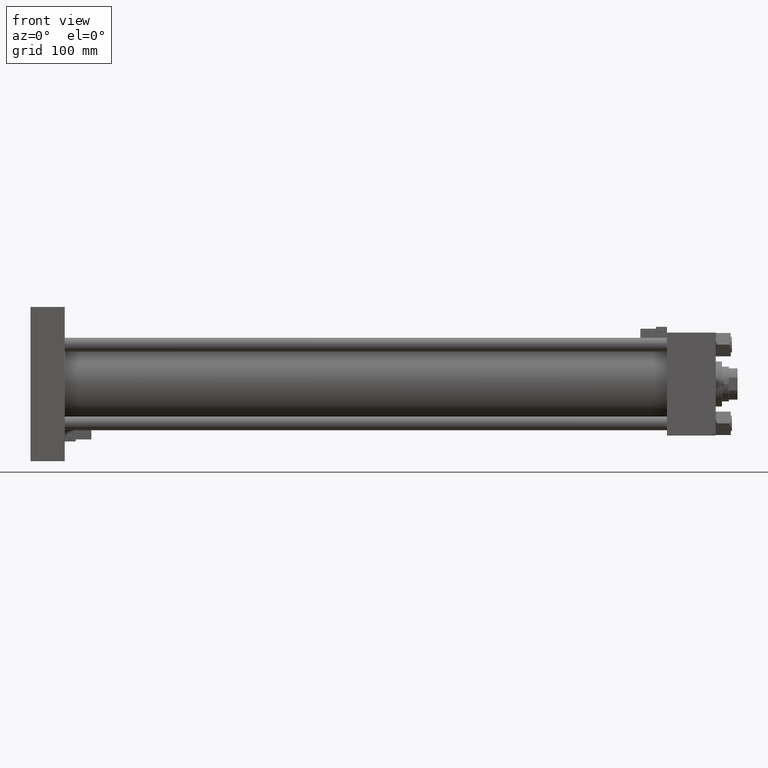
[diagram: clean part render]
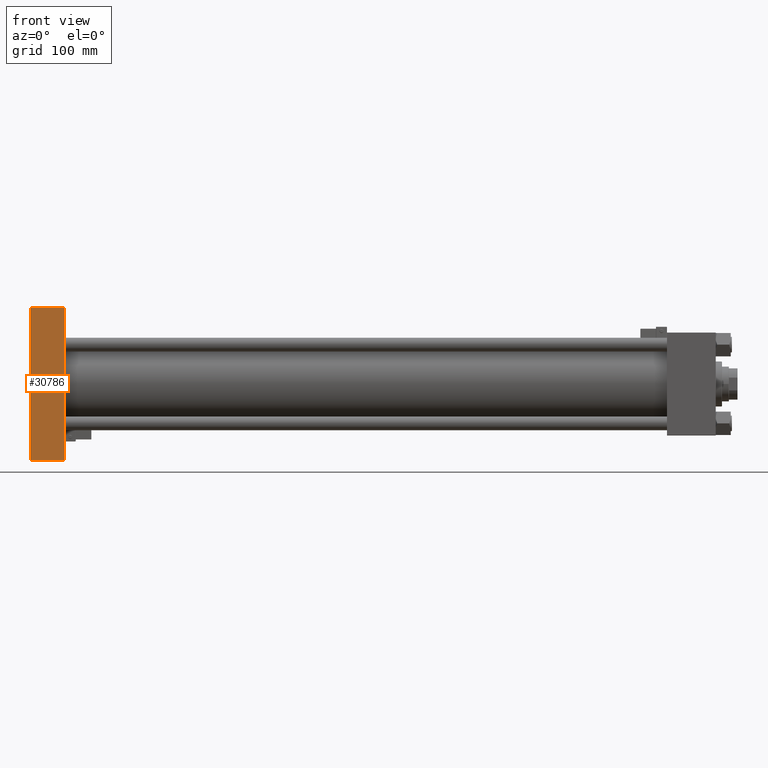
[diagram: same view with one face highlighted and labeled with its STEP entity id]
A machine part, front view. The second image highlights one B-rep face of the part: STEP entity #30786.
In plain terms, the highlighted planar face has unit normal (0, 1, 0).
Its self-contained STEP definition (entity closure, byte-faithful):
#94 = ORIENTED_EDGE ( 'NONE', *, *, #40303, .T. ) ;
#649 = AXIS2_PLACEMENT_3D ( 'NONE', #40878, #44623, #7823 ) ;
#2226 = ORIENTED_EDGE ( 'NONE', *, *, #43923, .F. ) ;
#4579 = VERTEX_POINT ( 'NONE', #46416 ) ;
#6760 = CARTESIAN_POINT ( 'NONE',  ( 55.00000000000000000, -82.49999999999998579, 122.9999999999999716 ) ) ;
#7823 = DIRECTION ( 'NONE',  ( 0.000000000000000000, -0.000000000000000000, 1.000000000000000000 ) ) ;
#8660 = VECTOR ( 'NONE', #25957, 1000.000000000000000 ) ;
#9691 = CARTESIAN_POINT ( 'NONE',  ( 55.00000000000000000, -82.49999999999998579, 123.5000000000000000 ) ) ;
#13676 = LINE ( 'NONE', #9691, #8660 ) ;
#13839 = DIRECTION ( 'NONE',  ( 1.000000000000000000, 0.000000000000000000, 0.000000000000000000 ) ) ;
#16859 = LINE ( 'NONE', #20872, #24682 ) ;
#20872 = CARTESIAN_POINT ( 'NONE',  ( 55.00000000000000000, -82.49999999999998579, 122.9999999999999716 ) ) ;
#23565 = CARTESIAN_POINT ( 'NONE',  ( 0.000000000000000000, -82.49999999999998579, -122.9999999999999432 ) ) ;
#24289 = LINE ( 'NONE', #24546, #31205 ) ;
#24298 = CARTESIAN_POINT ( 'NONE',  ( 0.000000000000000000, -82.49999999999998579, 122.9999999999999716 ) ) ;
#24546 = CARTESIAN_POINT ( 'NONE',  ( 0.000000000000000000, -82.49999999999998579, 123.5000000000000000 ) ) ;
#24682 = VECTOR ( 'NONE', #44638, 1000.000000000000000 ) ;
#25633 = EDGE_LOOP ( 'NONE', ( #43769, #27075, #2226, #94 ) ) ;
#25957 = DIRECTION ( 'NONE',  ( 0.000000000000000000, 0.000000000000000000, -1.000000000000000000 ) ) ;
#27075 = ORIENTED_EDGE ( 'NONE', *, *, #29947, .T. ) ;
#28817 = DIRECTION ( 'NONE',  ( 0.000000000000000000, 0.000000000000000000, -1.000000000000000000 ) ) ;
#29947 = EDGE_CURVE ( 'NONE', #42748, #4579, #49319, .T. ) ;
#30786 = ADVANCED_FACE ( 'NONE', ( #44091 ), #48615, .F. ) ;
#31205 = VECTOR ( 'NONE', #28817, 1000.000000000000000 ) ;
#31951 = EDGE_CURVE ( 'NONE', #40553, #42748, #24289, .T. ) ;
#40303 = EDGE_CURVE ( 'NONE', #45453, #40553, #16859, .T. ) ;
#40553 = VERTEX_POINT ( 'NONE', #24298 ) ;
#40878 = CARTESIAN_POINT ( 'NONE',  ( 55.00000000000000000, -82.49999999999998579, 123.5000000000000000 ) ) ;
#42748 = VERTEX_POINT ( 'NONE', #23565 ) ;
#43769 = ORIENTED_EDGE ( 'NONE', *, *, #31951, .T. ) ;
#43923 = EDGE_CURVE ( 'NONE', #45453, #4579, #13676, .T. ) ;
#44091 = FACE_OUTER_BOUND ( 'NONE', #25633, .T. ) ;
#44623 = DIRECTION ( 'NONE',  ( -0.000000000000000000, 1.000000000000000000, 0.000000000000000000 ) ) ;
#44638 = DIRECTION ( 'NONE',  ( -1.000000000000000000, 0.000000000000000000, 0.000000000000000000 ) ) ;
#45453 = VERTEX_POINT ( 'NONE', #6760 ) ;
#46116 = CARTESIAN_POINT ( 'NONE',  ( 55.00000000000000000, -82.49999999999998579, -122.9999999999999432 ) ) ;
#46416 = CARTESIAN_POINT ( 'NONE',  ( 55.00000000000000000, -82.49999999999998579, -122.9999999999999432 ) ) ;
#48615 = PLANE ( 'NONE',  #649 ) ;
#49319 = LINE ( 'NONE', #46116, #51694 ) ;
#51694 = VECTOR ( 'NONE', #13839, 1000.000000000000000 ) ;